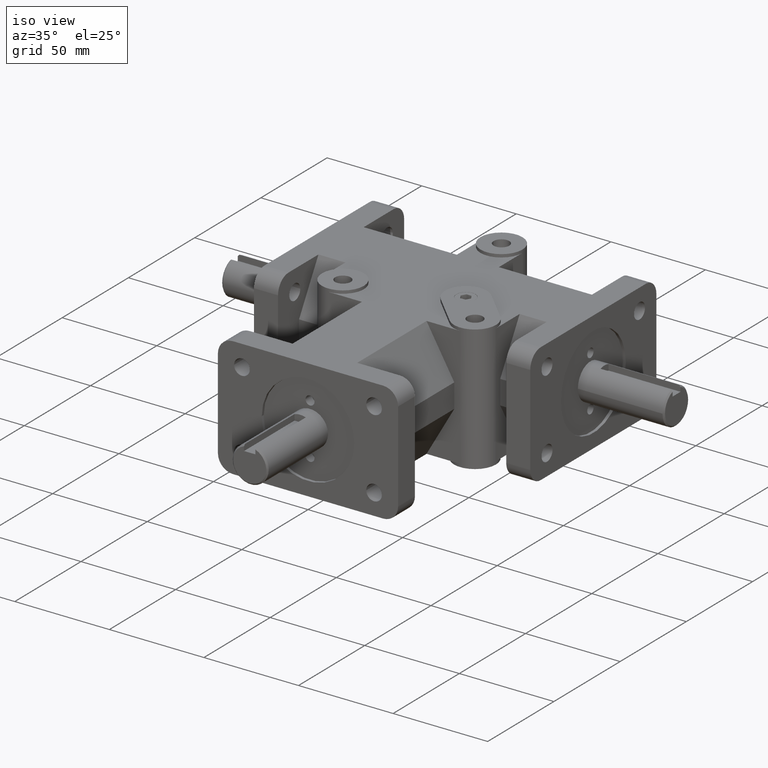
[diagram: clean part render]
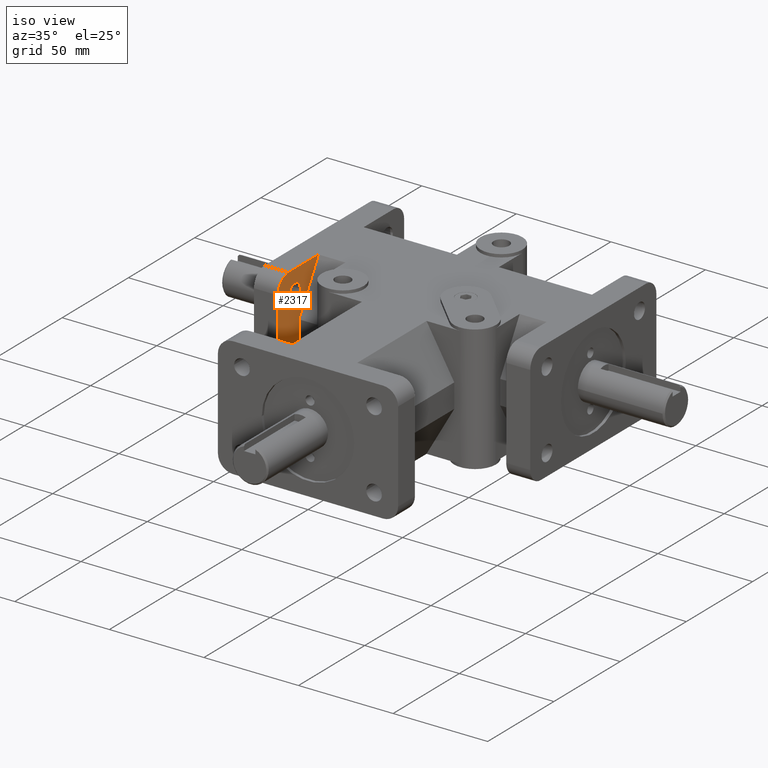
[diagram: same view with one face highlighted and labeled with its STEP entity id]
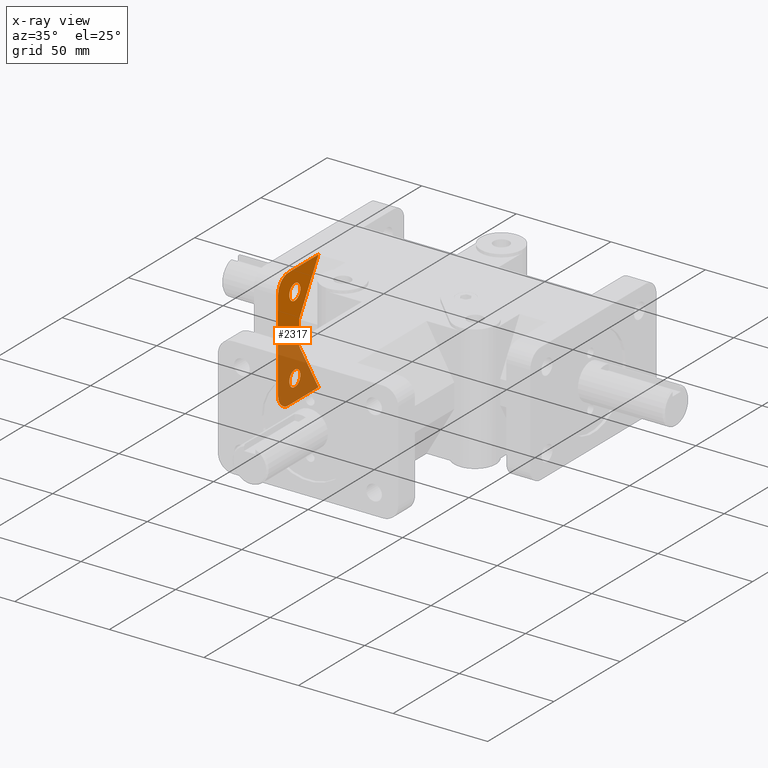
[diagram: x-ray of the same camera — body ghosted, the highlighted face saturated]
A machine part, iso view. The second image highlights one B-rep face of the part: STEP entity #2317.
The next image is the same camera in x-ray: the body ghosted, the highlighted face saturated — about 48% of this face is hidden behind the body in this view.
In plain terms, the highlighted planar face has unit normal (1, 0, 0).
Its self-contained STEP definition (entity closure, byte-faithful):
#33=FACE_BOUND('',#346,.T.);
#34=FACE_BOUND('',#347,.T.);
#90=PLANE('',#2525);
#198=FACE_OUTER_BOUND('',#345,.T.);
#345=EDGE_LOOP('',(#1791,#1792,#1793,#1794,#1795,#1796,#1797,#1798));
#346=EDGE_LOOP('',(#1799));
#347=EDGE_LOOP('',(#1800));
#534=LINE('',#3675,#756);
#535=LINE('',#3677,#757);
#536=LINE('',#3679,#758);
#537=LINE('',#3681,#759);
#538=LINE('',#3682,#760);
#539=LINE('',#3683,#761);
#756=VECTOR('',#2959,1.);
#757=VECTOR('',#2960,1.);
#758=VECTOR('',#2961,1.);
#759=VECTOR('',#2962,1.);
#760=VECTOR('',#2963,1.);
#761=VECTOR('',#2964,1.);
#946=CIRCLE('',#2504,7.874);
#948=CIRCLE('',#2507,7.874);
#961=CIRCLE('',#2526,4.15925);
#962=CIRCLE('',#2527,4.15925);
#1090=VERTEX_POINT('',#3598);
#1091=VERTEX_POINT('',#3600);
#1094=VERTEX_POINT('',#3607);
#1095=VERTEX_POINT('',#3609);
#1120=VERTEX_POINT('',#3674);
#1121=VERTEX_POINT('',#3676);
#1122=VERTEX_POINT('',#3678);
#1123=VERTEX_POINT('',#3680);
#1124=VERTEX_POINT('',#3684);
#1125=VERTEX_POINT('',#3686);
#1338=EDGE_CURVE('',#1090,#1091,#946,.T.);
#1342=EDGE_CURVE('',#1094,#1095,#948,.T.);
#1376=EDGE_CURVE('',#1090,#1120,#534,.T.);
#1377=EDGE_CURVE('',#1121,#1120,#535,.F.);
#1378=EDGE_CURVE('',#1122,#1121,#536,.T.);
#1379=EDGE_CURVE('',#1123,#1122,#537,.F.);
#1380=EDGE_CURVE('',#1123,#1095,#538,.T.);
#1381=EDGE_CURVE('',#1094,#1091,#539,.T.);
#1382=EDGE_CURVE('',#1124,#1124,#961,.T.);
#1383=EDGE_CURVE('',#1125,#1125,#962,.T.);
#1791=ORIENTED_EDGE('',*,*,#1338,.F.);
#1792=ORIENTED_EDGE('',*,*,#1376,.T.);
#1793=ORIENTED_EDGE('',*,*,#1377,.F.);
#1794=ORIENTED_EDGE('',*,*,#1378,.F.);
#1795=ORIENTED_EDGE('',*,*,#1379,.F.);
#1796=ORIENTED_EDGE('',*,*,#1380,.T.);
#1797=ORIENTED_EDGE('',*,*,#1342,.F.);
#1798=ORIENTED_EDGE('',*,*,#1381,.T.);
#1799=ORIENTED_EDGE('',*,*,#1382,.T.);
#1800=ORIENTED_EDGE('',*,*,#1383,.T.);
#2317=ADVANCED_FACE('',(#198,#33,#34),#90,.T.);
#2504=AXIS2_PLACEMENT_3D('',#3601,#2892,#2893);
#2507=AXIS2_PLACEMENT_3D('',#3610,#2900,#2901);
#2525=AXIS2_PLACEMENT_3D('',#3673,#2957,#2958);
#2526=AXIS2_PLACEMENT_3D('',#3685,#2965,#2966);
#2527=AXIS2_PLACEMENT_3D('',#3687,#2967,#2968);
#2892=DIRECTION('center_axis',(-1.,0.,0.));
#2893=DIRECTION('ref_axis',(0.,-0.707106781186547,-0.707106781186548));
#2900=DIRECTION('center_axis',(-1.,0.,0.));
#2901=DIRECTION('ref_axis',(0.,-0.707106781186547,0.707106781186548));
#2957=DIRECTION('center_axis',(1.,0.,0.));
#2958=DIRECTION('ref_axis',(0.,-1.,0.));
#2959=DIRECTION('',(0.,1.,0.));
#2960=DIRECTION('',(0.,-0.499999825156179,0.866025504730542));
#2961=DIRECTION('',(0.,0.,-1.));
#2962=DIRECTION('',(0.,0.499999825156179,0.866025504730542));
#2963=DIRECTION('',(0.,-1.,0.));
#2964=DIRECTION('',(0.,0.,-1.));
#2965=DIRECTION('center_axis',(-1.,0.,0.));
#2966=DIRECTION('ref_axis',(0.,-1.,0.));
#2967=DIRECTION('center_axis',(-1.,0.,0.));
#2968=DIRECTION('ref_axis',(0.,-1.,0.));
#3598=CARTESIAN_POINT('',(-60.325,71.374,-31.75));
#3600=CARTESIAN_POINT('',(-60.325,63.5,-23.876));
#3601=CARTESIAN_POINT('Origin',(-60.325,71.374,-23.876));
#3607=CARTESIAN_POINT('',(-60.325,63.5,23.876));
#3609=CARTESIAN_POINT('',(-60.325,71.374,31.75));
#3610=CARTESIAN_POINT('Origin',(-60.325,71.374,23.876));
#3673=CARTESIAN_POINT('Origin',(-60.325,63.5,0.));
#3674=CARTESIAN_POINT('',(-60.325,94.03969,-31.75));
#3675=CARTESIAN_POINT('',(-60.325,73.1499528726981,-31.75));
#3676=CARTESIAN_POINT('',(-60.325,79.375,-6.35));
#3677=CARTESIAN_POINT('',(-60.325,79.6819838798188,-6.88171192486159));
#3678=CARTESIAN_POINT('',(-60.325,79.375,6.35));
#3679=CARTESIAN_POINT('',(-60.325,79.375,0.));
#3680=CARTESIAN_POINT('',(-60.325,94.03969,31.75));
#3681=CARTESIAN_POINT('',(-60.325,79.6819838798188,6.88171192486159));
#3682=CARTESIAN_POINT('',(-60.325,63.5,31.75));
#3683=CARTESIAN_POINT('',(-60.325,63.5,0.));
#3684=CARTESIAN_POINT('',(-60.325,80.35925,20.6375));
#3685=CARTESIAN_POINT('Origin',(-60.325,76.2,20.6375));
#3686=CARTESIAN_POINT('',(-60.325,80.35925,-20.6375));
#3687=CARTESIAN_POINT('Origin',(-60.325,76.2,-20.6375));